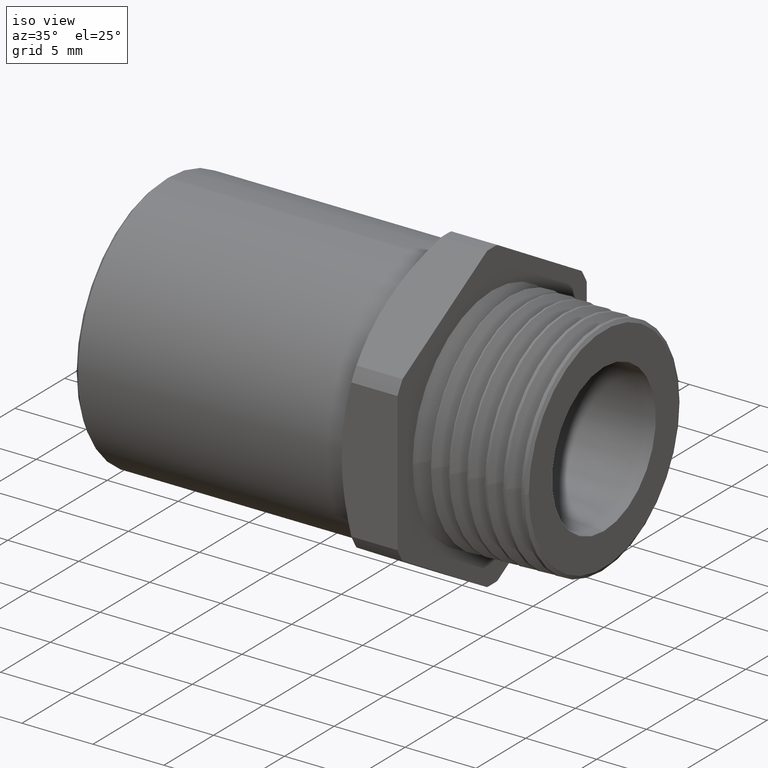
[diagram: clean part render]
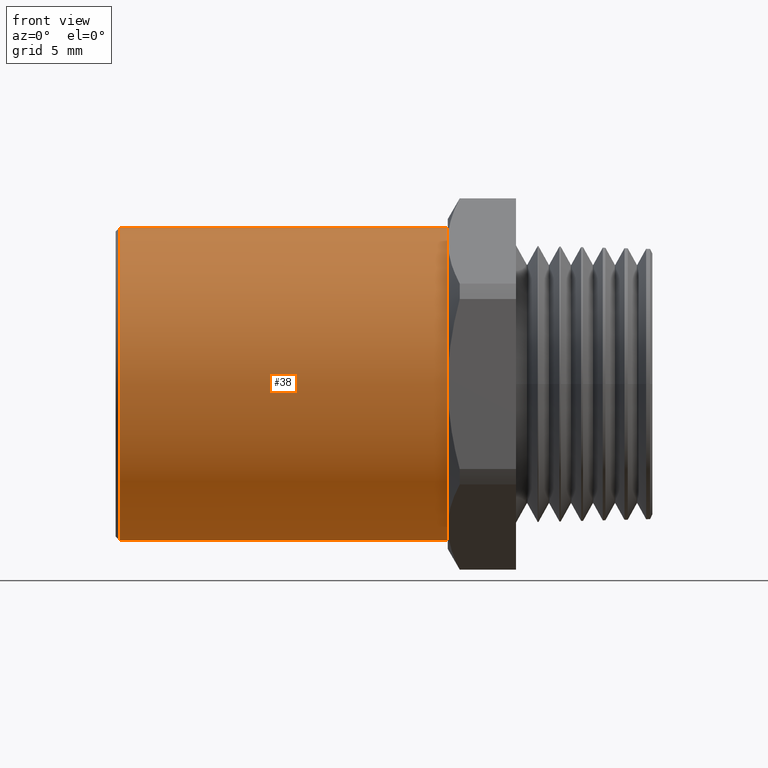
[diagram: tour spotlight — one face highlighted and labeled with its STEP entity id]
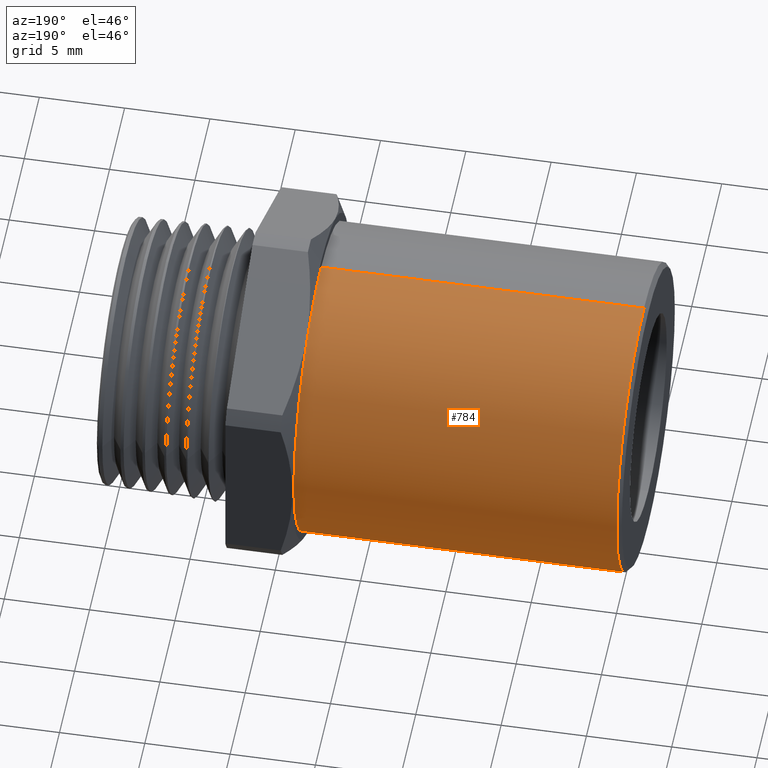
[diagram: tour spotlight — one face highlighted and labeled with its STEP entity id]
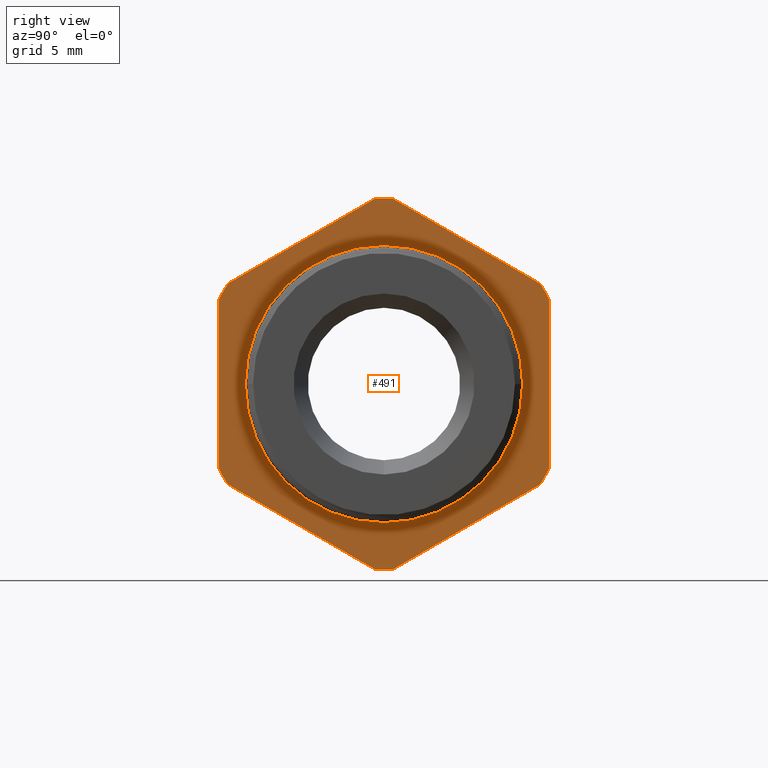
[diagram: tour spotlight — one face highlighted and labeled with its STEP entity id]
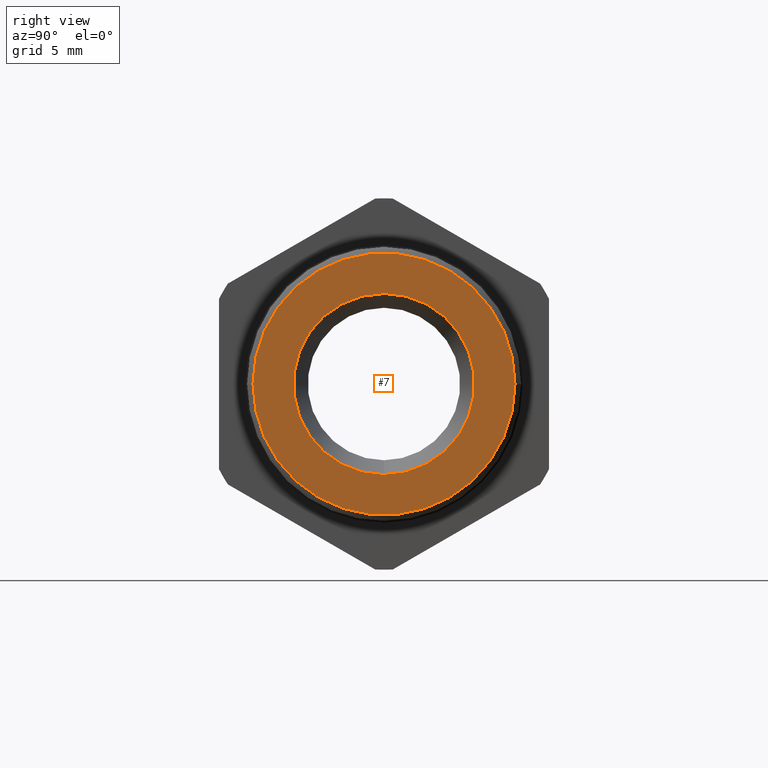
[diagram: tour spotlight — one face highlighted and labeled with its STEP entity id]
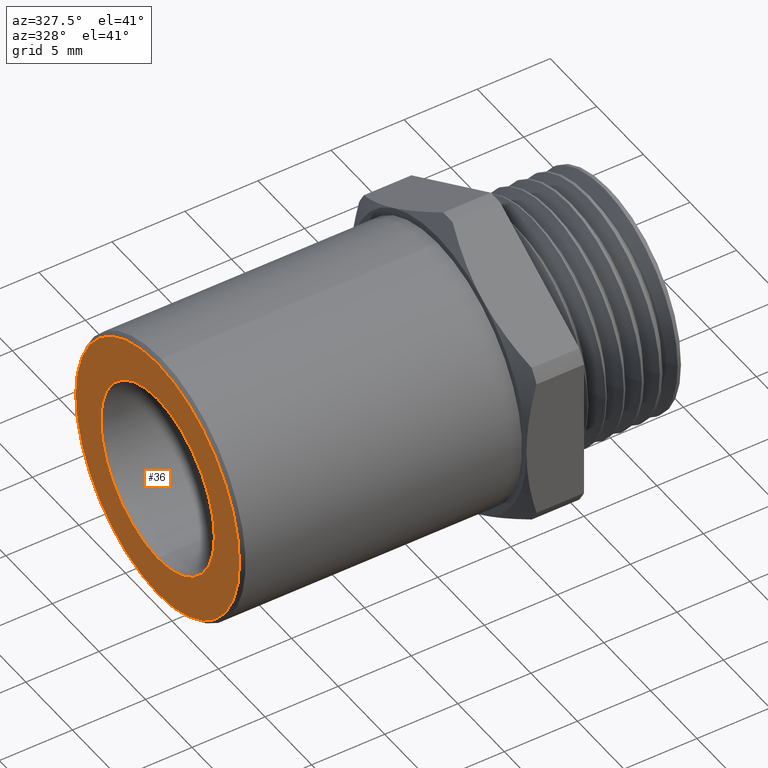
[diagram: tour spotlight — one face highlighted and labeled with its STEP entity id]
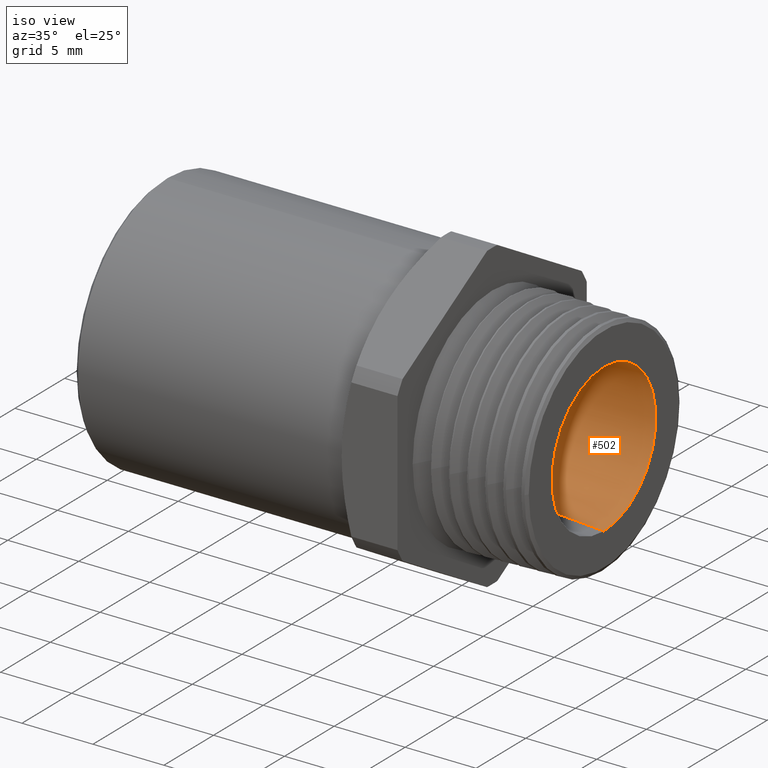
[diagram: tour spotlight — one face highlighted and labeled with its STEP entity id]
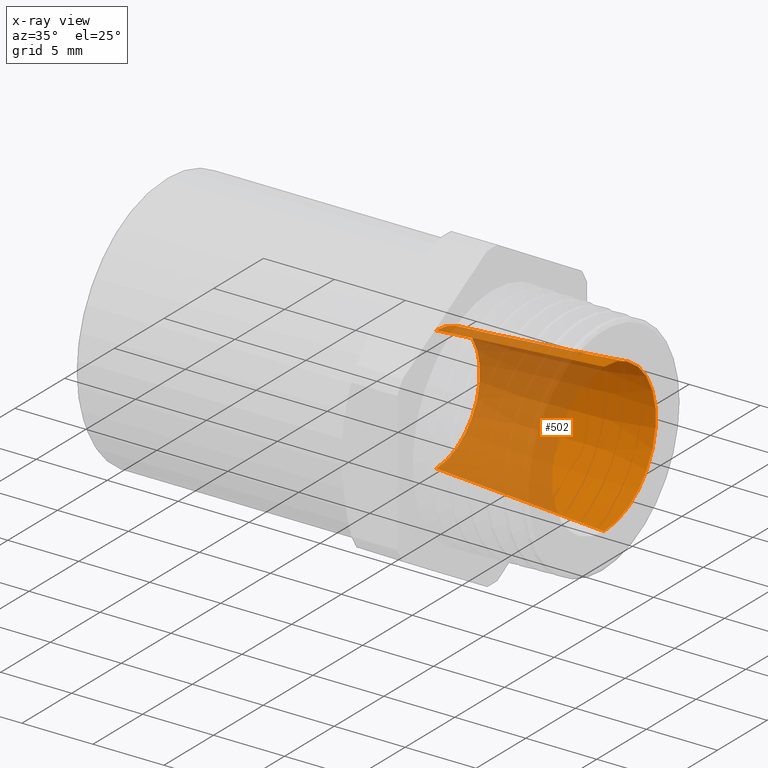
[diagram: x-ray of the same camera — body ghosted, this tour face saturated]
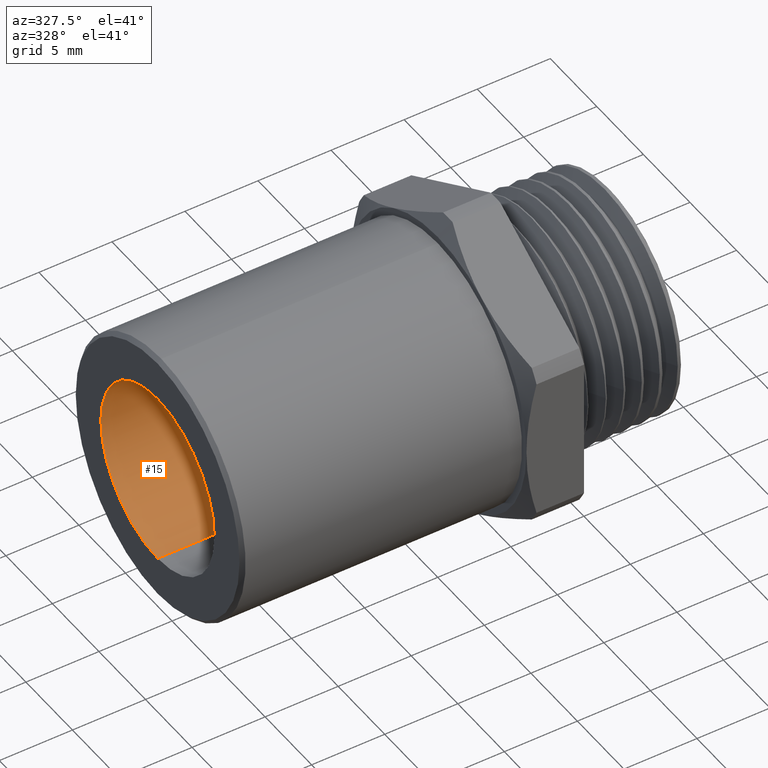
[diagram: tour spotlight — one face highlighted and labeled with its STEP entity id]
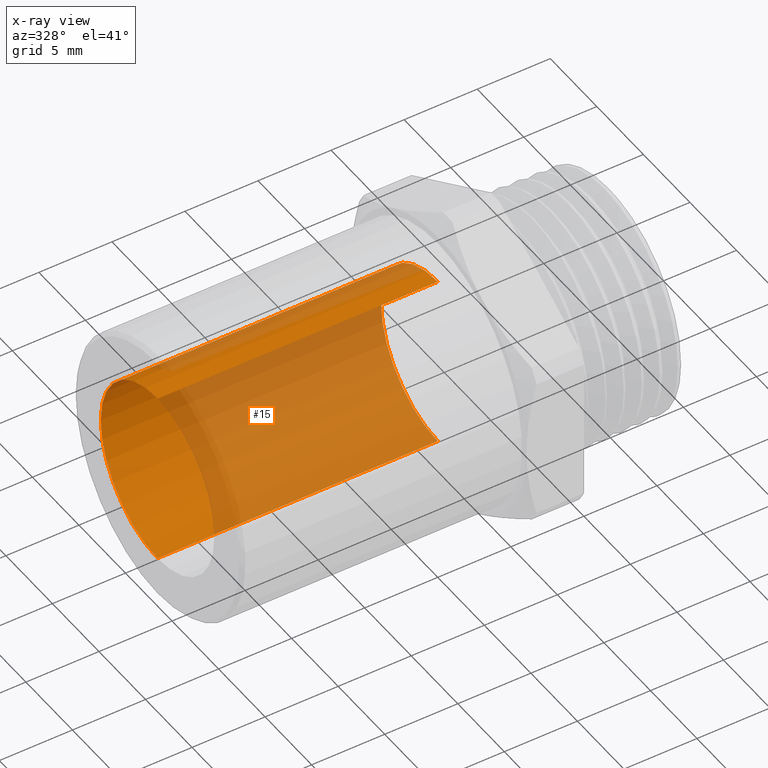
[diagram: x-ray of the same camera — body ghosted, this tour face saturated]
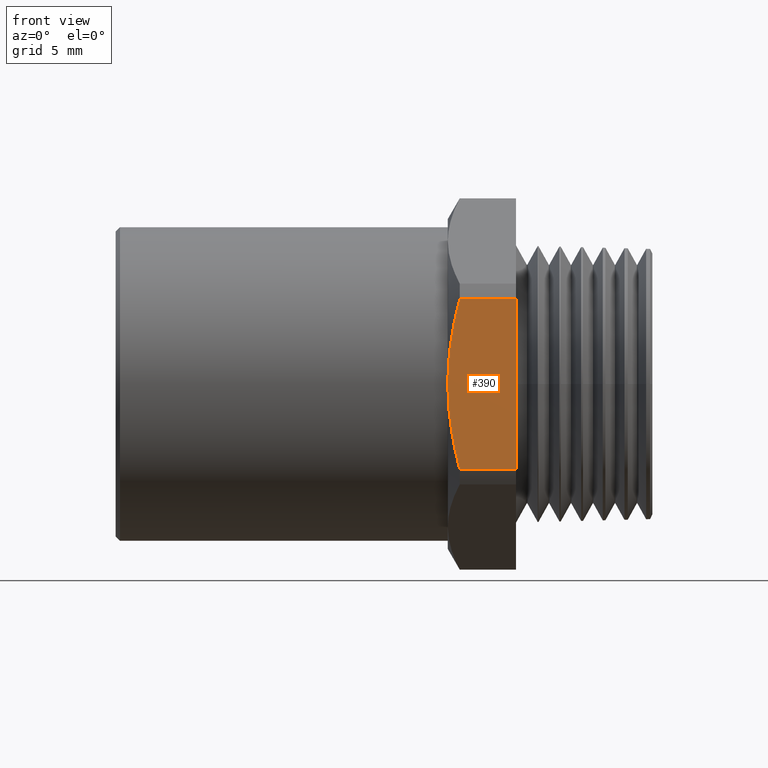
[diagram: tour spotlight — one face highlighted and labeled with its STEP entity id]
A machine part: a face-by-face anatomy tour. The part has 71 B-rep faces; the first image is the clean iso view, then the 8 largest visible faces are spotlighted one at a time (largest first), each with its STEP entity span.

Face 1 — front view, entity #38. In plain terms, the highlighted cylindrical surface (partial cylindrical patch) has radius 9.0488 mm, axis along (-1, 0, 0).
Definition (entity closure, byte-faithful):
#18 = ORIENTED_EDGE ( 'NONE', *, *, #19, .T. ) ;
#19 = EDGE_CURVE ( 'NONE', #623, #677, #865, .T. ) ;
#20 = ORIENTED_EDGE ( 'NONE', *, *, #136, .F. ) ;
#21 = ORIENTED_EDGE ( 'NONE', *, *, #348, .T. ) ;
#26 = EDGE_LOOP ( 'NONE', ( #20, #21, #29, #18 ) ) ;
#29 = ORIENTED_EDGE ( 'NONE', *, *, #130, .T. ) ;
#38 = ADVANCED_FACE ( 'NONE', ( #834 ), #898, .T. ) ;
#130 = EDGE_CURVE ( 'NONE', #135, #623, #990, .T. ) ;
#135 = VERTEX_POINT ( 'NONE', #980 ) ;
#136 = EDGE_CURVE ( 'NONE', #137, #677, #979, .T. ) ;
#137 = VERTEX_POINT ( 'NONE', #975 ) ;
#348 = EDGE_CURVE ( 'NONE', #137, #135, #1358, .T. ) ;
#623 = VERTEX_POINT ( 'NONE', #1877 ) ;
#677 = VERTEX_POINT ( 'NONE', #2004 ) ;
#834 = FACE_OUTER_BOUND ( 'NONE', #26, .T. ) ;
#858 = DIRECTION ( 'NONE',  ( 0.0000000000000000000, 0.0000000000000000000, -1.000000000000000000 ) ) ;
#859 = DIRECTION ( 'NONE',  ( 1.000000000000000000, 0.0000000000000000000, 0.0000000000000000000 ) ) ;
#860 = CARTESIAN_POINT ( 'NONE',  ( -1.209999999999999300, 0.0000000000000000000, 0.0000000000000000000 ) ) ;
#861 = AXIS2_PLACEMENT_3D ( 'NONE', #860, #859, #858 ) ;
#865 = CIRCLE ( 'NONE', #861, 0.3562500000000000100 ) ;
#894 = DIRECTION ( 'NONE',  ( 0.0000000000000000000, 0.0000000000000000000, 1.000000000000000000 ) ) ;
#895 = DIRECTION ( 'NONE',  ( -1.000000000000000000, 0.0000000000000000000, 0.0000000000000000000 ) ) ;
#896 = CARTESIAN_POINT ( 'NONE',  ( -0.5911096051061856000, 0.0000000000000000000, 0.0000000000000000000 ) ) ;
#897 = AXIS2_PLACEMENT_3D ( 'NONE', #896, #895, #894 ) ;
#898 = CYLINDRICAL_SURFACE ( 'NONE', #897, 0.3562500000000000100 ) ;
#975 = CARTESIAN_POINT ( 'NONE',  ( -0.4649999999999997500, 4.362804221962446900E-017, -0.3562500000000000700 ) ) ;
#976 = DIRECTION ( 'NONE',  ( -1.000000000000000000, 0.0000000000000000000, 0.0000000000000000000 ) ) ;
#977 = VECTOR ( 'NONE', #976, 39.37007874015748100 ) ;
#978 = CARTESIAN_POINT ( 'NONE',  ( -0.5911096051061856000, 4.362804221962445700E-017, -0.3562500000000000100 ) ) ;
#979 = LINE ( 'NONE', #978, #977 ) ;
#980 = CARTESIAN_POINT ( 'NONE',  ( -0.4649999999999997500, 0.0000000000000000000, 0.3562500000000000700 ) ) ;
#987 = DIRECTION ( 'NONE',  ( -1.000000000000000000, 0.0000000000000000000, 0.0000000000000000000 ) ) ;
#988 = VECTOR ( 'NONE', #987, 39.37007874015748100 ) ;
#989 = CARTESIAN_POINT ( 'NONE',  ( -0.5911096051061856000, 0.0000000000000000000, 0.3562500000000000100 ) ) ;
#990 = LINE ( 'NONE', #989, #988 ) ;
#1354 = DIRECTION ( 'NONE',  ( 0.0000000000000000000, 0.0000000000000000000, 1.000000000000000000 ) ) ;
#1355 = DIRECTION ( 'NONE',  ( -1.000000000000000000, 0.0000000000000000000, 0.0000000000000000000 ) ) ;
#1356 = CARTESIAN_POINT ( 'NONE',  ( -0.4649999999999997500, 0.0000000000000000000, 0.0000000000000000000 ) ) ;
#1357 = AXIS2_PLACEMENT_3D ( 'NONE', #1356, #1355, #1354 ) ;
#1358 = CIRCLE ( 'NONE', #1357, 0.3562500000000000700 ) ;
#1877 = CARTESIAN_POINT ( 'NONE',  ( -1.209999999999999300, 0.0000000000000000000, 0.3562500000000000100 ) ) ;
#2004 = CARTESIAN_POINT ( 'NONE',  ( -1.209999999999999300, 4.362804221962445700E-017, -0.3562500000000000100 ) ) ;

Face 2 — auxiliary view, entity #784. In plain terms, the highlighted cylindrical surface (partial cylindrical patch) has radius 9.0488 mm, axis along (-1, 0, 0).
Definition (entity closure, byte-faithful):
#127 = ORIENTED_EDGE ( 'NONE', *, *, #130, .F. ) ;
#128 = ORIENTED_EDGE ( 'NONE', *, *, #553, .T. ) ;
#130 = EDGE_CURVE ( 'NONE', #135, #623, #990, .T. ) ;
#135 = VERTEX_POINT ( 'NONE', #980 ) ;
#136 = EDGE_CURVE ( 'NONE', #137, #677, #979, .T. ) ;
#137 = VERTEX_POINT ( 'NONE', #975 ) ;
#138 = ORIENTED_EDGE ( 'NONE', *, *, #136, .T. ) ;
#515 = EDGE_LOOP ( 'NONE', ( #785, #138, #128, #127 ) ) ;
#553 = EDGE_CURVE ( 'NONE', #677, #623, #1707, .T. ) ;
#623 = VERTEX_POINT ( 'NONE', #1877 ) ;
#677 = VERTEX_POINT ( 'NONE', #2004 ) ;
#784 = ADVANCED_FACE ( 'NONE', ( #2165 ), #2224, .T. ) ;
#785 = ORIENTED_EDGE ( 'NONE', *, *, #786, .T. ) ;
#786 = EDGE_CURVE ( 'NONE', #135, #137, #2217, .T. ) ;
#975 = CARTESIAN_POINT ( 'NONE',  ( -0.4649999999999997500, 4.362804221962446900E-017, -0.3562500000000000700 ) ) ;
#976 = DIRECTION ( 'NONE',  ( -1.000000000000000000, 0.0000000000000000000, 0.0000000000000000000 ) ) ;
#977 = VECTOR ( 'NONE', #976, 39.37007874015748100 ) ;
#978 = CARTESIAN_POINT ( 'NONE',  ( -0.5911096051061856000, 4.362804221962445700E-017, -0.3562500000000000100 ) ) ;
#979 = LINE ( 'NONE', #978, #977 ) ;
#980 = CARTESIAN_POINT ( 'NONE',  ( -0.4649999999999997500, 0.0000000000000000000, 0.3562500000000000700 ) ) ;
#987 = DIRECTION ( 'NONE',  ( -1.000000000000000000, 0.0000000000000000000, 0.0000000000000000000 ) ) ;
#988 = VECTOR ( 'NONE', #987, 39.37007874015748100 ) ;
#989 = CARTESIAN_POINT ( 'NONE',  ( -0.5911096051061856000, 0.0000000000000000000, 0.3562500000000000100 ) ) ;
#990 = LINE ( 'NONE', #989, #988 ) ;
#1703 = DIRECTION ( 'NONE',  ( 0.0000000000000000000, 0.0000000000000000000, -1.000000000000000000 ) ) ;
#1704 = DIRECTION ( 'NONE',  ( 1.000000000000000000, 0.0000000000000000000, 0.0000000000000000000 ) ) ;
#1705 = CARTESIAN_POINT ( 'NONE',  ( -1.209999999999999300, 0.0000000000000000000, 0.0000000000000000000 ) ) ;
#1706 = AXIS2_PLACEMENT_3D ( 'NONE', #1705, #1704, #1703 ) ;
#1707 = CIRCLE ( 'NONE', #1706, 0.3562500000000000100 ) ;
#1877 = CARTESIAN_POINT ( 'NONE',  ( -1.209999999999999300, 0.0000000000000000000, 0.3562500000000000100 ) ) ;
#2004 = CARTESIAN_POINT ( 'NONE',  ( -1.209999999999999300, 4.362804221962445700E-017, -0.3562500000000000100 ) ) ;
#2165 = FACE_OUTER_BOUND ( 'NONE', #515, .T. ) ;
#2167 = DIRECTION ( 'NONE',  ( -1.000000000000000000, 0.0000000000000000000, 0.0000000000000000000 ) ) ;
#2211 = DIRECTION ( 'NONE',  ( 0.0000000000000000000, 0.0000000000000000000, 1.000000000000000000 ) ) ;
#2212 = DIRECTION ( 'NONE',  ( -1.000000000000000000, 0.0000000000000000000, 0.0000000000000000000 ) ) ;
#2213 = CARTESIAN_POINT ( 'NONE',  ( -0.4649999999999997500, 0.0000000000000000000, 0.0000000000000000000 ) ) ;
#2214 = AXIS2_PLACEMENT_3D ( 'NONE', #2213, #2212, #2211 ) ;
#2215 = DIRECTION ( 'NONE',  ( 0.0000000000000000000, 0.0000000000000000000, 1.000000000000000000 ) ) ;
#2216 = AXIS2_PLACEMENT_3D ( 'NONE', #2223, #2167, #2215 ) ;
#2217 = CIRCLE ( 'NONE', #2214, 0.3562500000000000700 ) ;
#2223 = CARTESIAN_POINT ( 'NONE',  ( -0.5911096051061856000, 0.0000000000000000000, 0.0000000000000000000 ) ) ;
#2224 = CYLINDRICAL_SURFACE ( 'NONE', #2216, 0.3562500000000000100 ) ;

Face 3 — right view, entity #491. In plain terms, the highlighted planar face has unit normal (-1, 0, 0).
Definition (entity closure, byte-faithful):
#232 = EDGE_CURVE ( 'NONE', #265, #264, #1167, .T. ) ;
#264 = VERTEX_POINT ( 'NONE', #1183 ) ;
#265 = VERTEX_POINT ( 'NONE', #1182 ) ;
#266 = VERTEX_POINT ( 'NONE', #1181 ) ;
#272 = EDGE_CURVE ( 'NONE', #424, #285, #1232, .T. ) ;
#284 = VERTEX_POINT ( 'NONE', #1267 ) ;
#285 = VERTEX_POINT ( 'NONE', #1266 ) ;
#287 = EDGE_CURVE ( 'NONE', #266, #284, #1265, .T. ) ;
#298 = VERTEX_POINT ( 'NONE', #1254 ) ;
#302 = VERTEX_POINT ( 'NONE', #1306 ) ;
#304 = EDGE_CURVE ( 'NONE', #298, #302, #1304, .T. ) ;
#312 = VERTEX_POINT ( 'NONE', #1286 ) ;
#375 = VERTEX_POINT ( 'NONE', #1373 ) ;
#384 = EDGE_CURVE ( 'NONE', #394, #375, #1433, .T. ) ;
#394 = VERTEX_POINT ( 'NONE', #1415 ) ;
#405 = EDGE_CURVE ( 'NONE', #375, #312, #1447, .T. ) ;
#424 = VERTEX_POINT ( 'NONE', #1463 ) ;
#427 = VERTEX_POINT ( 'NONE', #1462 ) ;
#428 = EDGE_CURVE ( 'NONE', #427, #424, #1521, .T. ) ;
#438 = EDGE_CURVE ( 'NONE', #302, #427, #1503, .T. ) ;
#448 = EDGE_CURVE ( 'NONE', #285, #266, #1536, .T. ) ;
#453 = EDGE_CURVE ( 'NONE', #543, #298, #1524, .T. ) ;
#461 = ORIENTED_EDGE ( 'NONE', *, *, #428, .F. ) ;
#463 = EDGE_LOOP ( 'NONE', ( #506, #504 ) ) ;
#464 = ORIENTED_EDGE ( 'NONE', *, *, #405, .F. ) ;
#465 = ORIENTED_EDGE ( 'NONE', *, *, #453, .F. ) ;
#467 = EDGE_CURVE ( 'NONE', #264, #394, #1561, .T. ) ;
#468 = ORIENTED_EDGE ( 'NONE', *, *, #304, .F. ) ;
#471 = EDGE_CURVE ( 'NONE', #284, #265, #1602, .T. ) ;
#472 = ORIENTED_EDGE ( 'NONE', *, *, #272, .F. ) ;
#474 = ORIENTED_EDGE ( 'NONE', *, *, #438, .F. ) ;
#476 = EDGE_LOOP ( 'NONE', ( #488, #490, #492, #478, #480, #479, #472, #461, #474, #468, #465, #477, #464 ) ) ;
#477 = ORIENTED_EDGE ( 'NONE', *, *, #550, .F. ) ;
#478 = ORIENTED_EDGE ( 'NONE', *, *, #471, .F. ) ;
#479 = ORIENTED_EDGE ( 'NONE', *, *, #448, .F. ) ;
#480 = ORIENTED_EDGE ( 'NONE', *, *, #287, .F. ) ;
#488 = ORIENTED_EDGE ( 'NONE', *, *, #384, .F. ) ;
#490 = ORIENTED_EDGE ( 'NONE', *, *, #467, .F. ) ;
#491 = ADVANCED_FACE ( 'NONE', ( #1633, #1584 ), #1632, .F. ) ;
#492 = ORIENTED_EDGE ( 'NONE', *, *, #232, .F. ) ;
#494 = EDGE_CURVE ( 'NONE', #694, #646, #1614, .T. ) ;
#504 = ORIENTED_EDGE ( 'NONE', *, *, #693, .F. ) ;
#506 = ORIENTED_EDGE ( 'NONE', *, *, #494, .F. ) ;
#543 = VERTEX_POINT ( 'NONE', #1725 ) ;
#550 = EDGE_CURVE ( 'NONE', #312, #543, #1711, .T. ) ;
#646 = VERTEX_POINT ( 'NONE', #1937 ) ;
#693 = EDGE_CURVE ( 'NONE', #646, #694, #2038, .T. ) ;
#694 = VERTEX_POINT ( 'NONE', #2033 ) ;
#1163 = DIRECTION ( 'NONE',  ( 0.0000000000000000000, 0.0000000000000000000, 1.000000000000000000 ) ) ;
#1164 = DIRECTION ( 'NONE',  ( -1.000000000000000000, 0.0000000000000000000, 0.0000000000000000000 ) ) ;
#1165 = CARTESIAN_POINT ( 'NONE',  ( -0.3100000000000000000, 0.0000000000000000000, 0.0000000000000000000 ) ) ;
#1166 = AXIS2_PLACEMENT_3D ( 'NONE', #1165, #1164, #1163 ) ;
#1167 = CIRCLE ( 'NONE', #1166, 0.4218750000000000000 ) ;
#1181 = CARTESIAN_POINT ( 'NONE',  ( -0.3100000000000000000, 0.3548772287939726500, 0.2281242383187512000 ) ) ;
#1182 = CARTESIAN_POINT ( 'NONE',  ( -0.3100000000000000000, 0.3750000000000005000, -0.1932705762008269400 ) ) ;
#1183 = CARTESIAN_POINT ( 'NONE',  ( -0.3100000000000000000, 0.3548772287939727700, -0.2281242383187510600 ) ) ;
#1228 = DIRECTION ( 'NONE',  ( 0.0000000000000000000, 0.0000000000000000000, 1.000000000000000000 ) ) ;
#1229 = DIRECTION ( 'NONE',  ( -1.000000000000000000, 0.0000000000000000000, 0.0000000000000000000 ) ) ;
#1230 = CARTESIAN_POINT ( 'NONE',  ( -0.3100000000000000000, 0.0000000000000000000, 0.0000000000000000000 ) ) ;
#1231 = AXIS2_PLACEMENT_3D ( 'NONE', #1230, #1229, #1228 ) ;
#1232 = CIRCLE ( 'NONE', #1231, 0.4218750000000000000 ) ;
#1254 = CARTESIAN_POINT ( 'NONE',  ( -0.3100000000000000000, -0.3749999999999999400, 0.1932705762008277700 ) ) ;
#1261 = DIRECTION ( 'NONE',  ( 0.0000000000000000000, 0.0000000000000000000, 1.000000000000000000 ) ) ;
#1262 = DIRECTION ( 'NONE',  ( -1.000000000000000000, 0.0000000000000000000, 0.0000000000000000000 ) ) ;
#1263 = CARTESIAN_POINT ( 'NONE',  ( -0.3100000000000000000, 0.0000000000000000000, 0.0000000000000000000 ) ) ;
#1264 = AXIS2_PLACEMENT_3D ( 'NONE', #1263, #1262, #1261 ) ;
#1265 = CIRCLE ( 'NONE', #1264, 0.4218750000000000000 ) ;
#1266 = CARTESIAN_POINT ( 'NONE',  ( -0.3100000000000000000, 0.02012277120602750200, 0.4213948145195783900 ) ) ;
#1267 = CARTESIAN_POINT ( 'NONE',  ( -0.3100000000000000000, 0.3750000000000005000, 0.1932705762008268800 ) ) ;
#1277 = DIRECTION ( 'NONE',  ( 0.0000000000000000000, 0.0000000000000000000, 1.000000000000000000 ) ) ;
#1286 = CARTESIAN_POINT ( 'NONE',  ( -0.3100000000000000000, -0.3548772287939726500, -0.2281242383187510600 ) ) ;
#1300 = DIRECTION ( 'NONE',  ( 0.0000000000000000000, 0.0000000000000000000, 1.000000000000000000 ) ) ;
#1301 = DIRECTION ( 'NONE',  ( -1.000000000000000000, 0.0000000000000000000, 0.0000000000000000000 ) ) ;
#1302 = CARTESIAN_POINT ( 'NONE',  ( -0.3100000000000000000, 0.0000000000000000000, 0.0000000000000000000 ) ) ;
#1303 = AXIS2_PLACEMENT_3D ( 'NONE', #1302, #1301, #1300 ) ;
#1304 = CIRCLE ( 'NONE', #1303, 0.4218750000000000000 ) ;
#1306 = CARTESIAN_POINT ( 'NONE',  ( -0.3100000000000000000, -0.3548772287939730400, 0.2281242383187505100 ) ) ;
#1373 = CARTESIAN_POINT ( 'NONE',  ( -0.3100000000000000000, -0.02012277120602770300, -0.4213948145195784400 ) ) ;
#1415 = CARTESIAN_POINT ( 'NONE',  ( -0.3100000000000000000, 0.02012277120602770300, -0.4213948145195783300 ) ) ;
#1429 = DIRECTION ( 'NONE',  ( 0.0000000000000000000, 0.0000000000000000000, 1.000000000000000000 ) ) ;
#1430 = DIRECTION ( 'NONE',  ( -1.000000000000000000, 0.0000000000000000000, 0.0000000000000000000 ) ) ;
#1431 = CARTESIAN_POINT ( 'NONE',  ( -0.3100000000000000000, 0.0000000000000000000, 0.0000000000000000000 ) ) ;
#1432 = AXIS2_PLACEMENT_3D ( 'NONE', #1431, #1430, #1429 ) ;
#1433 = CIRCLE ( 'NONE', #1432, 0.4218750000000000000 ) ;
#1438 = DIRECTION ( 'NONE',  ( 0.0000000000000000000, -0.8660254037844386000, 0.5000000000000002200 ) ) ;
#1439 = VECTOR ( 'NONE', #1438, 39.37007874015747400 ) ;
#1446 = CARTESIAN_POINT ( 'NONE',  ( -0.3100000000000000000, -0.3548772287939727100, -0.2281242383187510300 ) ) ;
#1447 = LINE ( 'NONE', #1446, #1439 ) ;
#1462 = CARTESIAN_POINT ( 'NONE',  ( -0.3100000000000000000, -0.02012277120602675900, 0.4213948145195785500 ) ) ;
#1463 = CARTESIAN_POINT ( 'NONE',  ( -0.3100000000000000000, 0.0000000000000000000, 0.4218750000000000000 ) ) ;
#1492 = DIRECTION ( 'NONE',  ( 0.0000000000000000000, 0.8660254037844386000, 0.5000000000000000000 ) ) ;
#1493 = VECTOR ( 'NONE', #1492, 39.37007874015748100 ) ;
#1502 = CARTESIAN_POINT ( 'NONE',  ( -0.3100000000000000000, -0.02012277120602691900, 0.4213948145195784400 ) ) ;
#1503 = LINE ( 'NONE', #1502, #1493 ) ;
#1517 = DIRECTION ( 'NONE',  ( 0.0000000000000000000, 0.0000000000000000000, 1.000000000000000000 ) ) ;
#1518 = DIRECTION ( 'NONE',  ( -1.000000000000000000, 0.0000000000000000000, 0.0000000000000000000 ) ) ;
#1519 = CARTESIAN_POINT ( 'NONE',  ( -0.3100000000000000000, 0.0000000000000000000, 0.0000000000000000000 ) ) ;
#1520 = AXIS2_PLACEMENT_3D ( 'NONE', #1519, #1518, #1517 ) ;
#1521 = CIRCLE ( 'NONE', #1520, 0.4218750000000000000 ) ;
#1522 = VECTOR ( 'NONE', #1277, 39.37007874015748100 ) ;
#1523 = CARTESIAN_POINT ( 'NONE',  ( -0.3100000000000000000, -0.3749999999999999400, 0.1932705762008277700 ) ) ;
#1524 = LINE ( 'NONE', #1523, #1522 ) ;
#1525 = DIRECTION ( 'NONE',  ( 0.0000000000000000000, 0.8660254037844388200, -0.4999999999999997200 ) ) ;
#1526 = VECTOR ( 'NONE', #1525, 39.37007874015748900 ) ;
#1527 = CARTESIAN_POINT ( 'NONE',  ( -0.3100000000000000000, 0.3548772287939727100, 0.2281242383187511400 ) ) ;
#1536 = LINE ( 'NONE', #1527, #1526 ) ;
#1550 = DIRECTION ( 'NONE',  ( 0.0000000000000000000, -0.8660254037844383700, -0.5000000000000002200 ) ) ;
#1559 = VECTOR ( 'NONE', #1550, 39.37007874015748100 ) ;
#1560 = CARTESIAN_POINT ( 'NONE',  ( -0.3100000000000000000, 0.02012277120602770300, -0.4213948145195783300 ) ) ;
#1561 = LINE ( 'NONE', #1560, #1559 ) ;
#1584 = FACE_BOUND ( 'NONE', #463, .T. ) ;
#1599 = DIRECTION ( 'NONE',  ( 0.0000000000000000000, 0.0000000000000000000, -1.000000000000000000 ) ) ;
#1600 = VECTOR ( 'NONE', #1599, 39.37007874015748100 ) ;
#1601 = CARTESIAN_POINT ( 'NONE',  ( -0.3100000000000000000, 0.3750000000000005000, -0.1932705762008268800 ) ) ;
#1602 = LINE ( 'NONE', #1601, #1600 ) ;
#1610 = DIRECTION ( 'NONE',  ( 0.0000000000000000000, 1.000000000000000000, 0.0000000000000000000 ) ) ;
#1611 = DIRECTION ( 'NONE',  ( 1.000000000000000000, -3.789761643835506200E-017, 0.0000000000000000000 ) ) ;
#1612 = CARTESIAN_POINT ( 'NONE',  ( -0.3100000000000000000, -4.601547615070013200E-017, 0.0000000000000000000 ) ) ;
#1613 = AXIS2_PLACEMENT_3D ( 'NONE', #1612, #1611, #1610 ) ;
#1614 = CIRCLE ( 'NONE', #1613, 0.3150000000000001100 ) ;
#1620 = DIRECTION ( 'NONE',  ( 0.0000000000000000000, 0.0000000000000000000, 1.000000000000000000 ) ) ;
#1621 = DIRECTION ( 'NONE',  ( -1.000000000000000000, 0.0000000000000000000, 0.0000000000000000000 ) ) ;
#1622 = CARTESIAN_POINT ( 'NONE',  ( -0.3100000000000000000, 0.3150000000000000600, 0.0000000000000000000 ) ) ;
#1623 = AXIS2_PLACEMENT_3D ( 'NONE', #1622, #1621, #1620 ) ;
#1632 = PLANE ( 'NONE',  #1623 ) ;
#1633 = FACE_OUTER_BOUND ( 'NONE', #476, .T. ) ;
#1708 = DIRECTION ( 'NONE',  ( 0.0000000000000000000, 0.0000000000000000000, 1.000000000000000000 ) ) ;
#1709 = DIRECTION ( 'NONE',  ( -1.000000000000000000, 0.0000000000000000000, 0.0000000000000000000 ) ) ;
#1710 = AXIS2_PLACEMENT_3D ( 'NONE', #1717, #1709, #1708 ) ;
#1711 = CIRCLE ( 'NONE', #1710, 0.4218750000000000000 ) ;
#1717 = CARTESIAN_POINT ( 'NONE',  ( -0.3100000000000000000, 0.0000000000000000000, 0.0000000000000000000 ) ) ;
#1725 = CARTESIAN_POINT ( 'NONE',  ( -0.3100000000000000000, -0.3750000000000000600, -0.1932705762008278300 ) ) ;
#1937 = CARTESIAN_POINT ( 'NONE',  ( -0.3100000000000000000, 0.3150000000000000600, 3.857637417314163900E-017 ) ) ;
#2033 = CARTESIAN_POINT ( 'NONE',  ( -0.3100000000000000000, -0.3150000000000001700, 0.0000000000000000000 ) ) ;
#2034 = DIRECTION ( 'NONE',  ( 0.0000000000000000000, 1.000000000000000000, 0.0000000000000000000 ) ) ;
#2035 = DIRECTION ( 'NONE',  ( 1.000000000000000000, -3.789761643835506200E-017, 0.0000000000000000000 ) ) ;
#2036 = CARTESIAN_POINT ( 'NONE',  ( -0.3100000000000000000, -4.601547615070013200E-017, 0.0000000000000000000 ) ) ;
#2037 = AXIS2_PLACEMENT_3D ( 'NONE', #2036, #2035, #2034 ) ;
#2038 = CIRCLE ( 'NONE', #2037, 0.3150000000000001100 ) ;

Face 4 — right view, entity #7. In plain terms, the highlighted planar face has unit normal (-1, 0, 0).
Definition (entity closure, byte-faithful):
#7 = ADVANCED_FACE ( 'NONE', ( #828, #827 ), #826, .F. ) ;
#483 = EDGE_LOOP ( 'NONE', ( #509, #499 ) ) ;
#497 = ORIENTED_EDGE ( 'NONE', *, *, #801, .T. ) ;
#499 = ORIENTED_EDGE ( 'NONE', *, *, #600, .T. ) ;
#500 = EDGE_CURVE ( 'NONE', #521, #720, #1608, .T. ) ;
#503 = EDGE_LOOP ( 'NONE', ( #497, #505 ) ) ;
#505 = ORIENTED_EDGE ( 'NONE', *, *, #500, .T. ) ;
#508 = EDGE_CURVE ( 'NONE', #603, #602, #1656, .T. ) ;
#509 = ORIENTED_EDGE ( 'NONE', *, *, #508, .T. ) ;
#521 = VERTEX_POINT ( 'NONE', #1635 ) ;
#600 = EDGE_CURVE ( 'NONE', #602, #603, #1807, .T. ) ;
#602 = VERTEX_POINT ( 'NONE', #1798 ) ;
#603 = VERTEX_POINT ( 'NONE', #1797 ) ;
#720 = VERTEX_POINT ( 'NONE', #2040 ) ;
#801 = EDGE_CURVE ( 'NONE', #720, #521, #2243, .T. ) ;
#822 = DIRECTION ( 'NONE',  ( 0.0000000000000000000, 0.0000000000000000000, 1.000000000000000000 ) ) ;
#823 = DIRECTION ( 'NONE',  ( -1.000000000000000000, 0.0000000000000000000, 0.0000000000000000000 ) ) ;
#824 = CARTESIAN_POINT ( 'NONE',  ( 8.562613615646798300E-017, 0.3068823643135521500, 0.0000000000000000000 ) ) ;
#825 = AXIS2_PLACEMENT_3D ( 'NONE', #824, #823, #822 ) ;
#826 = PLANE ( 'NONE',  #825 ) ;
#827 = FACE_BOUND ( 'NONE', #503, .T. ) ;
#828 = FACE_OUTER_BOUND ( 'NONE', #483, .T. ) ;
#1604 = DIRECTION ( 'NONE',  ( 0.0000000000000000000, 0.0000000000000000000, 1.000000000000000000 ) ) ;
#1605 = DIRECTION ( 'NONE',  ( -1.000000000000000000, 0.0000000000000000000, 0.0000000000000000000 ) ) ;
#1606 = CARTESIAN_POINT ( 'NONE',  ( 1.365923996832131600E-016, 0.0000000000000000000, 0.0000000000000000000 ) ) ;
#1607 = AXIS2_PLACEMENT_3D ( 'NONE', #1606, #1605, #1604 ) ;
#1608 = CIRCLE ( 'NONE', #1607, 0.2057659675537325000 ) ;
#1635 = CARTESIAN_POINT ( 'NONE',  ( 1.365923996832131600E-016, 2.519906335381366700E-017, 0.2057659675537325000 ) ) ;
#1653 = DIRECTION ( 'NONE',  ( 0.0000000000000000000, 0.0000000000000000000, 1.000000000000000000 ) ) ;
#1654 = DIRECTION ( 'NONE',  ( 1.000000000000000000, 0.0000000000000000000, 0.0000000000000000000 ) ) ;
#1655 = AXIS2_PLACEMENT_3D ( 'NONE', #1660, #1654, #1653 ) ;
#1656 = CIRCLE ( 'NONE', #1655, 0.2976794919243112600 ) ;
#1660 = CARTESIAN_POINT ( 'NONE',  ( 8.537024980200822600E-017, -5.738476108220664800E-017, 1.916088344691711400E-017 ) ) ;
#1797 = CARTESIAN_POINT ( 'NONE',  ( 8.537024980200822600E-017, -0.2976794919243113700, 3.791200677927629700E-033 ) ) ;
#1798 = CARTESIAN_POINT ( 'NONE',  ( 8.537024980200822600E-017, 0.2976794919243112000, 3.702738733310992100E-017 ) ) ;
#1804 = DIRECTION ( 'NONE',  ( 0.0000000000000000000, 0.0000000000000000000, 1.000000000000000000 ) ) ;
#1805 = DIRECTION ( 'NONE',  ( 1.000000000000000000, 0.0000000000000000000, 0.0000000000000000000 ) ) ;
#1806 = AXIS2_PLACEMENT_3D ( 'NONE', #1813, #1805, #1804 ) ;
#1807 = CIRCLE ( 'NONE', #1806, 0.2976794919243112600 ) ;
#1813 = CARTESIAN_POINT ( 'NONE',  ( 8.537024980200822600E-017, -5.738476108220664800E-017, 1.916088344691711400E-017 ) ) ;
#2040 = CARTESIAN_POINT ( 'NONE',  ( 1.365923996832131600E-016, 0.0000000000000000000, -0.2057659675537325000 ) ) ;
#2239 = DIRECTION ( 'NONE',  ( 0.0000000000000000000, 0.0000000000000000000, 1.000000000000000000 ) ) ;
#2240 = DIRECTION ( 'NONE',  ( -1.000000000000000000, 0.0000000000000000000, 0.0000000000000000000 ) ) ;
#2241 = CARTESIAN_POINT ( 'NONE',  ( 1.365923996832131600E-016, 0.0000000000000000000, 0.0000000000000000000 ) ) ;
#2242 = AXIS2_PLACEMENT_3D ( 'NONE', #2241, #2240, #2239 ) ;
#2243 = CIRCLE ( 'NONE', #2242, 0.2057659675537325000 ) ;

Face 5 — auxiliary view, entity #36. In plain terms, the highlighted planar face has unit normal (1, 0, 0).
Definition (entity closure, byte-faithful):
#8 = EDGE_LOOP ( 'NONE', ( #42, #40 ) ) ;
#10 = ORIENTED_EDGE ( 'NONE', *, *, #601, .T. ) ;
#25 = EDGE_CURVE ( 'NONE', #409, #418, #857, .T. ) ;
#31 = EDGE_CURVE ( 'NONE', #626, #625, #852, .T. ) ;
#32 = EDGE_LOOP ( 'NONE', ( #34, #10 ) ) ;
#34 = ORIENTED_EDGE ( 'NONE', *, *, #31, .T. ) ;
#36 = ADVANCED_FACE ( 'NONE', ( #845, #840 ), #839, .F. ) ;
#40 = ORIENTED_EDGE ( 'NONE', *, *, #412, .F. ) ;
#42 = ORIENTED_EDGE ( 'NONE', *, *, #25, .F. ) ;
#409 = VERTEX_POINT ( 'NONE', #1490 ) ;
#412 = EDGE_CURVE ( 'NONE', #418, #409, #1489, .T. ) ;
#418 = VERTEX_POINT ( 'NONE', #1475 ) ;
#601 = EDGE_CURVE ( 'NONE', #625, #626, #1803, .T. ) ;
#625 = VERTEX_POINT ( 'NONE', #1858 ) ;
#626 = VERTEX_POINT ( 'NONE', #1857 ) ;
#835 = DIRECTION ( 'NONE',  ( 0.0000000000000000000, 0.0000000000000000000, -1.000000000000000000 ) ) ;
#836 = DIRECTION ( 'NONE',  ( 1.000000000000000000, 0.0000000000000000000, 0.0000000000000000000 ) ) ;
#837 = CARTESIAN_POINT ( 'NONE',  ( -1.219999999999999500, 0.3562499999999999000, 0.0000000000000000000 ) ) ;
#838 = AXIS2_PLACEMENT_3D ( 'NONE', #837, #836, #835 ) ;
#839 = PLANE ( 'NONE',  #838 ) ;
#840 = FACE_BOUND ( 'NONE', #8, .T. ) ;
#845 = FACE_OUTER_BOUND ( 'NONE', #32, .T. ) ;
#848 = DIRECTION ( 'NONE',  ( 0.0000000000000000000, 0.0000000000000000000, -1.000000000000000000 ) ) ;
#849 = DIRECTION ( 'NONE',  ( -1.000000000000000000, 0.0000000000000000000, 0.0000000000000000000 ) ) ;
#850 = CARTESIAN_POINT ( 'NONE',  ( -1.219999999999999500, 0.0000000000000000000, 0.0000000000000000000 ) ) ;
#851 = AXIS2_PLACEMENT_3D ( 'NONE', #850, #849, #848 ) ;
#852 = CIRCLE ( 'NONE', #851, 0.3462499999999997800 ) ;
#853 = DIRECTION ( 'NONE',  ( 0.0000000000000000000, 0.0000000000000000000, 1.000000000000000000 ) ) ;
#854 = DIRECTION ( 'NONE',  ( -1.000000000000000000, 0.0000000000000000000, 0.0000000000000000000 ) ) ;
#855 = CARTESIAN_POINT ( 'NONE',  ( -1.219999999999999800, 0.0000000000000000000, 0.0000000000000000000 ) ) ;
#856 = AXIS2_PLACEMENT_3D ( 'NONE', #855, #854, #853 ) ;
#857 = CIRCLE ( 'NONE', #856, 0.2400000000000000500 ) ;
#1475 = CARTESIAN_POINT ( 'NONE',  ( -1.219999999999999800, 2.939152317953648000E-017, -0.2400000000000000500 ) ) ;
#1485 = DIRECTION ( 'NONE',  ( 0.0000000000000000000, 0.0000000000000000000, 1.000000000000000000 ) ) ;
#1486 = DIRECTION ( 'NONE',  ( -1.000000000000000000, 0.0000000000000000000, 0.0000000000000000000 ) ) ;
#1487 = CARTESIAN_POINT ( 'NONE',  ( -1.219999999999999800, 0.0000000000000000000, 0.0000000000000000000 ) ) ;
#1488 = AXIS2_PLACEMENT_3D ( 'NONE', #1487, #1486, #1485 ) ;
#1489 = CIRCLE ( 'NONE', #1488, 0.2400000000000000500 ) ;
#1490 = CARTESIAN_POINT ( 'NONE',  ( -1.219999999999999800, 0.0000000000000000000, 0.2400000000000000500 ) ) ;
#1799 = DIRECTION ( 'NONE',  ( 0.0000000000000000000, 0.0000000000000000000, -1.000000000000000000 ) ) ;
#1800 = DIRECTION ( 'NONE',  ( -1.000000000000000000, 0.0000000000000000000, 0.0000000000000000000 ) ) ;
#1801 = CARTESIAN_POINT ( 'NONE',  ( -1.219999999999999500, 0.0000000000000000000, 0.0000000000000000000 ) ) ;
#1802 = AXIS2_PLACEMENT_3D ( 'NONE', #1801, #1800, #1799 ) ;
#1803 = CIRCLE ( 'NONE', #1802, 0.3462499999999997800 ) ;
#1857 = CARTESIAN_POINT ( 'NONE',  ( -1.219999999999999500, 0.0000000000000000000, -0.3462499999999997800 ) ) ;
#1858 = CARTESIAN_POINT ( 'NONE',  ( -1.219999999999999500, 4.301571882005076300E-017, 0.3462499999999997800 ) ) ;

Face 6 — iso view, entity #502. An x-ray twin of the same camera follows (body ghosted, this face saturated) — the face is partly hidden behind the body. In plain terms, the highlighted conical surface has half-angle 4 deg.
Definition (entity closure, byte-faithful):
#6 = ORIENTED_EDGE ( 'NONE', *, *, #14, .T. ) ;
#13 = ORIENTED_EDGE ( 'NONE', *, *, #500, .F. ) ;
#14 = EDGE_CURVE ( 'NONE', #524, #526, #809, .T. ) ;
#17 = ORIENTED_EDGE ( 'NONE', *, *, #722, .T. ) ;
#496 = ORIENTED_EDGE ( 'NONE', *, *, #522, .F. ) ;
#498 = EDGE_LOOP ( 'NONE', ( #496, #6, #17, #13 ) ) ;
#500 = EDGE_CURVE ( 'NONE', #521, #720, #1608, .T. ) ;
#502 = ADVANCED_FACE ( 'NONE', ( #1609 ), #1666, .F. ) ;
#521 = VERTEX_POINT ( 'NONE', #1635 ) ;
#522 = EDGE_CURVE ( 'NONE', #524, #521, #1696, .T. ) ;
#524 = VERTEX_POINT ( 'NONE', #1692 ) ;
#526 = VERTEX_POINT ( 'NONE', #1691 ) ;
#720 = VERTEX_POINT ( 'NONE', #2040 ) ;
#722 = EDGE_CURVE ( 'NONE', #526, #720, #2041, .T. ) ;
#805 = DIRECTION ( 'NONE',  ( 0.0000000000000000000, 0.0000000000000000000, 1.000000000000000000 ) ) ;
#806 = DIRECTION ( 'NONE',  ( -1.000000000000000000, 0.0000000000000000000, 0.0000000000000000000 ) ) ;
#807 = CARTESIAN_POINT ( 'NONE',  ( -0.4649999999999998000, 0.0000000000000000000, 0.0000000000000000000 ) ) ;
#808 = AXIS2_PLACEMENT_3D ( 'NONE', #807, #806, #805 ) ;
#809 = CIRCLE ( 'NONE', #808, 0.1732499999999999900 ) ;
#1603 = CARTESIAN_POINT ( 'NONE',  ( -0.4649999999999998000, 0.0000000000000000000, 0.0000000000000000000 ) ) ;
#1604 = DIRECTION ( 'NONE',  ( 0.0000000000000000000, 0.0000000000000000000, 1.000000000000000000 ) ) ;
#1605 = DIRECTION ( 'NONE',  ( -1.000000000000000000, 0.0000000000000000000, 0.0000000000000000000 ) ) ;
#1606 = CARTESIAN_POINT ( 'NONE',  ( 1.365923996832131600E-016, 0.0000000000000000000, 0.0000000000000000000 ) ) ;
#1607 = AXIS2_PLACEMENT_3D ( 'NONE', #1606, #1605, #1604 ) ;
#1608 = CIRCLE ( 'NONE', #1607, 0.2057659675537325000 ) ;
#1609 = FACE_OUTER_BOUND ( 'NONE', #498, .T. ) ;
#1635 = CARTESIAN_POINT ( 'NONE',  ( 1.365923996832131600E-016, 2.519906335381366700E-017, 0.2057659675537325000 ) ) ;
#1663 = DIRECTION ( 'NONE',  ( 0.0000000000000000000, 0.0000000000000000000, -1.000000000000000000 ) ) ;
#1664 = DIRECTION ( 'NONE',  ( 1.000000000000000000, 0.0000000000000000000, 0.0000000000000000000 ) ) ;
#1665 = AXIS2_PLACEMENT_3D ( 'NONE', #1603, #1664, #1663 ) ;
#1666 = CONICAL_SURFACE ( 'NONE', #1665, 0.1732499999999999900, 0.06981317007977352900 ) ;
#1691 = CARTESIAN_POINT ( 'NONE',  ( -0.4649999999999998000, 0.0000000000000000000, -0.1732499999999999900 ) ) ;
#1692 = CARTESIAN_POINT ( 'NONE',  ( -0.4649999999999998000, 2.320803457452077600E-017, 0.1732499999999999900 ) ) ;
#1693 = DIRECTION ( 'NONE',  ( 0.9975640502598242000, 8.542704229054986300E-018, 0.06975647374412564900 ) ) ;
#1694 = VECTOR ( 'NONE', #1693, 39.37007874015748100 ) ;
#1695 = CARTESIAN_POINT ( 'NONE',  ( -0.4649999999999998000, 2.121700579522789400E-017, 0.1732499999999999900 ) ) ;
#1696 = LINE ( 'NONE', #1695, #1694 ) ;
#2040 = CARTESIAN_POINT ( 'NONE',  ( 1.365923996832131600E-016, 0.0000000000000000000, -0.2057659675537325000 ) ) ;
#2041 = LINE ( 'NONE', #2100, #2099 ) ;
#2098 = DIRECTION ( 'NONE',  ( 0.9975640502598242000, 0.0000000000000000000, -0.06975647374412564900 ) ) ;
#2099 = VECTOR ( 'NONE', #2098, 39.37007874015748100 ) ;
#2100 = CARTESIAN_POINT ( 'NONE',  ( -0.4649999999999998000, 0.0000000000000000000, -0.1732499999999999900 ) ) ;

Face 7 — auxiliary view, entity #15. An x-ray twin of the same camera follows (body ghosted, this face saturated) — the face is partly hidden behind the body. In plain terms, the highlighted cylindrical surface (partial cylindrical patch) has radius 6.096 mm, axis along (-1, 0, 0).
Definition (entity closure, byte-faithful):
#4 = EDGE_CURVE ( 'NONE', #414, #431, #833, .T. ) ;
#15 = ADVANCED_FACE ( 'NONE', ( #804 ), #802, .F. ) ;
#23 = ORIENTED_EDGE ( 'NONE', *, *, #25, .T. ) ;
#25 = EDGE_CURVE ( 'NONE', #409, #418, #857, .T. ) ;
#27 = ORIENTED_EDGE ( 'NONE', *, *, #413, .F. ) ;
#28 = ORIENTED_EDGE ( 'NONE', *, *, #4, .F. ) ;
#30 = ORIENTED_EDGE ( 'NONE', *, *, #417, .T. ) ;
#33 = EDGE_LOOP ( 'NONE', ( #27, #28, #30, #23 ) ) ;
#409 = VERTEX_POINT ( 'NONE', #1490 ) ;
#413 = EDGE_CURVE ( 'NONE', #431, #418, #1484, .T. ) ;
#414 = VERTEX_POINT ( 'NONE', #1480 ) ;
#417 = EDGE_CURVE ( 'NONE', #414, #409, #1479, .T. ) ;
#418 = VERTEX_POINT ( 'NONE', #1475 ) ;
#431 = VERTEX_POINT ( 'NONE', #1516 ) ;
#802 = CYLINDRICAL_SURFACE ( 'NONE', #803, 0.2400000000000000500 ) ;
#803 = AXIS2_PLACEMENT_3D ( 'NONE', #864, #863, #862 ) ;
#804 = FACE_OUTER_BOUND ( 'NONE', #33, .T. ) ;
#829 = DIRECTION ( 'NONE',  ( 0.0000000000000000000, 0.0000000000000000000, 1.000000000000000000 ) ) ;
#830 = DIRECTION ( 'NONE',  ( -1.000000000000000000, 0.0000000000000000000, 0.0000000000000000000 ) ) ;
#831 = CARTESIAN_POINT ( 'NONE',  ( -0.4649999999999998000, 0.0000000000000000000, 0.0000000000000000000 ) ) ;
#832 = AXIS2_PLACEMENT_3D ( 'NONE', #831, #830, #829 ) ;
#833 = CIRCLE ( 'NONE', #832, 0.2400000000000000500 ) ;
#853 = DIRECTION ( 'NONE',  ( 0.0000000000000000000, 0.0000000000000000000, 1.000000000000000000 ) ) ;
#854 = DIRECTION ( 'NONE',  ( -1.000000000000000000, 0.0000000000000000000, 0.0000000000000000000 ) ) ;
#855 = CARTESIAN_POINT ( 'NONE',  ( -1.219999999999999800, 0.0000000000000000000, 0.0000000000000000000 ) ) ;
#856 = AXIS2_PLACEMENT_3D ( 'NONE', #855, #854, #853 ) ;
#857 = CIRCLE ( 'NONE', #856, 0.2400000000000000500 ) ;
#862 = DIRECTION ( 'NONE',  ( 0.0000000000000000000, 0.0000000000000000000, 1.000000000000000000 ) ) ;
#863 = DIRECTION ( 'NONE',  ( -1.000000000000000000, 0.0000000000000000000, 0.0000000000000000000 ) ) ;
#864 = CARTESIAN_POINT ( 'NONE',  ( -0.5911096051061856000, 0.0000000000000000000, 0.0000000000000000000 ) ) ;
#1475 = CARTESIAN_POINT ( 'NONE',  ( -1.219999999999999800, 2.939152317953648000E-017, -0.2400000000000000500 ) ) ;
#1476 = DIRECTION ( 'NONE',  ( -1.000000000000000000, 0.0000000000000000000, 0.0000000000000000000 ) ) ;
#1477 = VECTOR ( 'NONE', #1476, 39.37007874015748100 ) ;
#1478 = CARTESIAN_POINT ( 'NONE',  ( -0.5911096051061856000, 0.0000000000000000000, 0.2400000000000000500 ) ) ;
#1479 = LINE ( 'NONE', #1478, #1477 ) ;
#1480 = CARTESIAN_POINT ( 'NONE',  ( -0.4649999999999998000, 0.0000000000000000000, 0.2400000000000000500 ) ) ;
#1481 = DIRECTION ( 'NONE',  ( -1.000000000000000000, 0.0000000000000000000, 0.0000000000000000000 ) ) ;
#1482 = VECTOR ( 'NONE', #1481, 39.37007874015748100 ) ;
#1483 = CARTESIAN_POINT ( 'NONE',  ( -0.5911096051061856000, 2.939152317953648000E-017, -0.2400000000000000500 ) ) ;
#1484 = LINE ( 'NONE', #1483, #1482 ) ;
#1490 = CARTESIAN_POINT ( 'NONE',  ( -1.219999999999999800, 0.0000000000000000000, 0.2400000000000000500 ) ) ;
#1516 = CARTESIAN_POINT ( 'NONE',  ( -0.4649999999999998000, 2.939152317953648000E-017, -0.2400000000000000500 ) ) ;

Face 8 — front view, entity #390. In plain terms, the highlighted planar face has unit normal (0, 1, 0).
Definition (entity closure, byte-faithful):
#298 = VERTEX_POINT ( 'NONE', #1254 ) ;
#317 = VERTEX_POINT ( 'NONE', #1284 ) ;
#326 = VERTEX_POINT ( 'NONE', #1334 ) ;
#331 = EDGE_CURVE ( 'NONE', #298, #326, #1332, .T. ) ;
#352 = EDGE_CURVE ( 'NONE', #543, #317, #1352, .T. ) ;
#356 = VERTEX_POINT ( 'NONE', #1348 ) ;
#383 = EDGE_LOOP ( 'NONE', ( #403, #399, #398, #452, #450 ) ) ;
#390 = ADVANCED_FACE ( 'NONE', ( #1423 ), #1422, .F. ) ;
#398 = ORIENTED_EDGE ( 'NONE', *, *, #453, .T. ) ;
#399 = ORIENTED_EDGE ( 'NONE', *, *, #352, .F. ) ;
#400 = EDGE_CURVE ( 'NONE', #317, #356, #1460, .T. ) ;
#403 = ORIENTED_EDGE ( 'NONE', *, *, #400, .F. ) ;
#445 = EDGE_CURVE ( 'NONE', #356, #326, #1537, .T. ) ;
#450 = ORIENTED_EDGE ( 'NONE', *, *, #445, .F. ) ;
#452 = ORIENTED_EDGE ( 'NONE', *, *, #331, .T. ) ;
#453 = EDGE_CURVE ( 'NONE', #543, #298, #1524, .T. ) ;
#543 = VERTEX_POINT ( 'NONE', #1725 ) ;
#1254 = CARTESIAN_POINT ( 'NONE',  ( -0.3100000000000000000, -0.3749999999999999400, 0.1932705762008277700 ) ) ;
#1277 = DIRECTION ( 'NONE',  ( 0.0000000000000000000, 0.0000000000000000000, 1.000000000000000000 ) ) ;
#1284 = CARTESIAN_POINT ( 'NONE',  ( -0.4379367061317362400, -0.3750000000000000600, -0.1932705762008278300 ) ) ;
#1329 = DIRECTION ( 'NONE',  ( -1.000000000000000000, 0.0000000000000000000, 0.0000000000000000000 ) ) ;
#1330 = VECTOR ( 'NONE', #1329, 39.37007874015748100 ) ;
#1331 = CARTESIAN_POINT ( 'NONE',  ( 0.8951751201848218200, -0.3750000000000000600, 0.1932705762008277700 ) ) ;
#1332 = LINE ( 'NONE', #1331, #1330 ) ;
#1334 = CARTESIAN_POINT ( 'NONE',  ( -0.4379367061317362400, -0.3750000000000000600, 0.1932705762008277700 ) ) ;
#1348 = CARTESIAN_POINT ( 'NONE',  ( -0.4649999999999998000, -0.3749999999999999400, 0.0000000000000000000 ) ) ;
#1349 = DIRECTION ( 'NONE',  ( -1.000000000000000000, 0.0000000000000000000, 0.0000000000000000000 ) ) ;
#1350 = VECTOR ( 'NONE', #1349, 39.37007874015748100 ) ;
#1351 = CARTESIAN_POINT ( 'NONE',  ( 0.8951751201848218200, -0.3749999999999999400, -0.1932705762008277700 ) ) ;
#1352 = LINE ( 'NONE', #1351, #1350 ) ;
#1418 = DIRECTION ( 'NONE',  ( 0.0000000000000000000, 0.0000000000000000000, 1.000000000000000000 ) ) ;
#1419 = DIRECTION ( 'NONE',  ( 0.0000000000000000000, 1.000000000000000000, 0.0000000000000000000 ) ) ;
#1420 = CARTESIAN_POINT ( 'NONE',  ( 0.8951751201848218200, -0.3749999999999999400, 0.1932705762008277700 ) ) ;
#1421 = AXIS2_PLACEMENT_3D ( 'NONE', #1420, #1419, #1418 ) ;
#1422 = PLANE ( 'NONE',  #1421 ) ;
#1423 = FACE_OUTER_BOUND ( 'NONE', #383, .T. ) ;
#1451 = CARTESIAN_POINT ( 'NONE',  ( -0.4649999999999998000, -0.3749999999999999400, 0.0000000000000000000 ) ) ;
#1452 = CARTESIAN_POINT ( 'NONE',  ( -0.4649999999999996900, -0.3749999999999998900, -0.03253500351976056800 ) ) ;
#1453 = CARTESIAN_POINT ( 'NONE',  ( -0.4625201272140981300, -0.3749999999999999400, -0.06492290107459367000 ) ) ;
#1454 = CARTESIAN_POINT ( 'NONE',  ( -0.4531759834070725500, -0.3749999999999999400, -0.1294386138378245400 ) ) ;
#1455 = CARTESIAN_POINT ( 'NONE',  ( -0.4462862301139207700, -0.3750000000000001100, -0.1617030614137459600 ) ) ;
#1456 = CARTESIAN_POINT ( 'NONE',  ( -0.4379367061317362400, -0.3750000000000000600, -0.1932705762008278300 ) ) ;
#1460 = B_SPLINE_CURVE_WITH_KNOTS ( 'NONE', 3,
 ( #1456, #1455, #1454, #1453, #1452, #1451 ),
 .UNSPECIFIED., .F., .F.,
 ( 4, 2, 4 ),
 ( 0.009870799129891329900, 0.01234563407556560400, 0.01482046902123987900 ),
 .UNSPECIFIED. ) ;
#1522 = VECTOR ( 'NONE', #1277, 39.37007874015748100 ) ;
#1523 = CARTESIAN_POINT ( 'NONE',  ( -0.3100000000000000000, -0.3749999999999999400, 0.1932705762008277700 ) ) ;
#1524 = LINE ( 'NONE', #1523, #1522 ) ;
#1528 = CARTESIAN_POINT ( 'NONE',  ( -0.4379367061317362400, -0.3750000000000000600, 0.1932705762008277700 ) ) ;
#1529 = CARTESIAN_POINT ( 'NONE',  ( -0.4462262537443109600, -0.3749999999999999400, 0.1619298174466037300 ) ) ;
#1530 = CARTESIAN_POINT ( 'NONE',  ( -0.4530415268036001600, -0.3749999999999999400, 0.1301689467713370900 ) ) ;
#1531 = CARTESIAN_POINT ( 'NONE',  ( -0.4601142818683336400, -0.3749999999999999400, 0.08162996707493454200 ) ) ;
#1532 = CARTESIAN_POINT ( 'NONE',  ( -0.4619475126490969500, -0.3750000000000001100, 0.06523534802025250700 ) ) ;
#1533 = CARTESIAN_POINT ( 'NONE',  ( -0.4643865814109909300, -0.3749999999999999400, 0.03256352525866022800 ) ) ;
#1534 = CARTESIAN_POINT ( 'NONE',  ( -0.4649999999999996900, -0.3750000000000000600, 0.01626356864495445400 ) ) ;
#1535 = CARTESIAN_POINT ( 'NONE',  ( -0.4649999999999998000, -0.3749999999999999400, 0.0000000000000000000 ) ) ;
#1537 = B_SPLINE_CURVE_WITH_KNOTS ( 'NONE', 3,
 ( #1535, #1534, #1533, #1532, #1531, #1530, #1529, #1528 ),
 .UNSPECIFIED., .F., .F.,
 ( 4, 2, 2, 4 ),
 ( 0.01482046902123987900, 0.01605758731444859700, 0.01729470560765731700, 0.01976894219407475700 ),
 .UNSPECIFIED. ) ;
#1725 = CARTESIAN_POINT ( 'NONE',  ( -0.3100000000000000000, -0.3750000000000000600, -0.1932705762008278300 ) ) ;